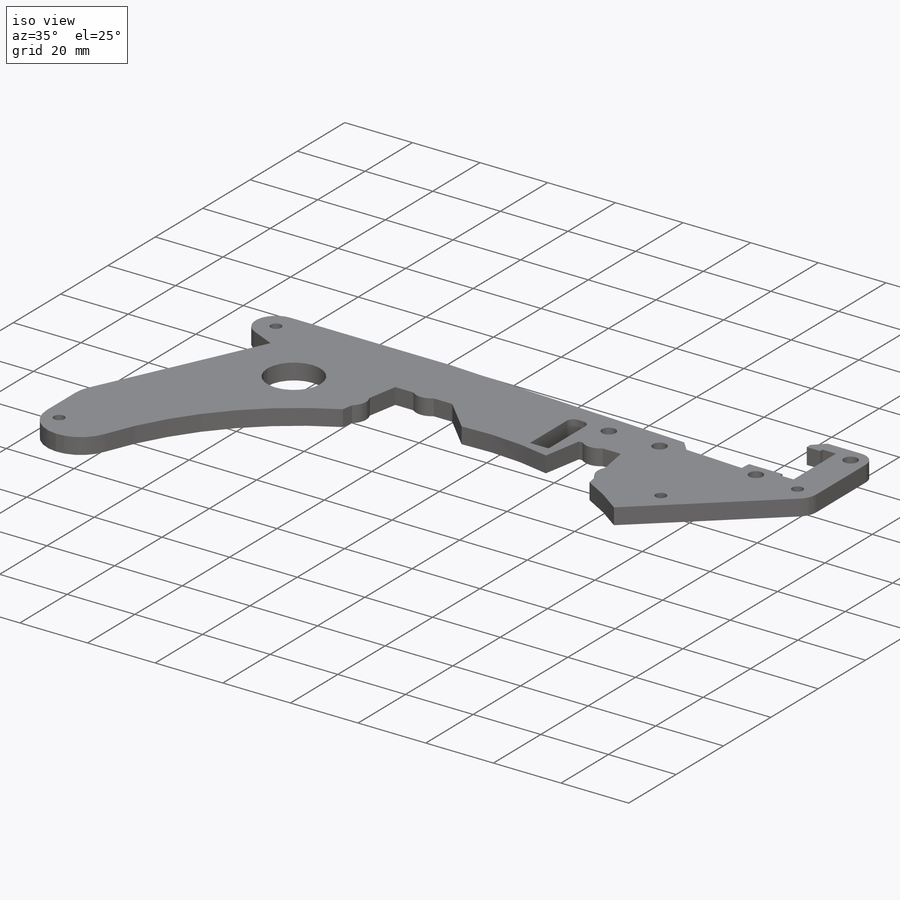
[diagram: iso view]
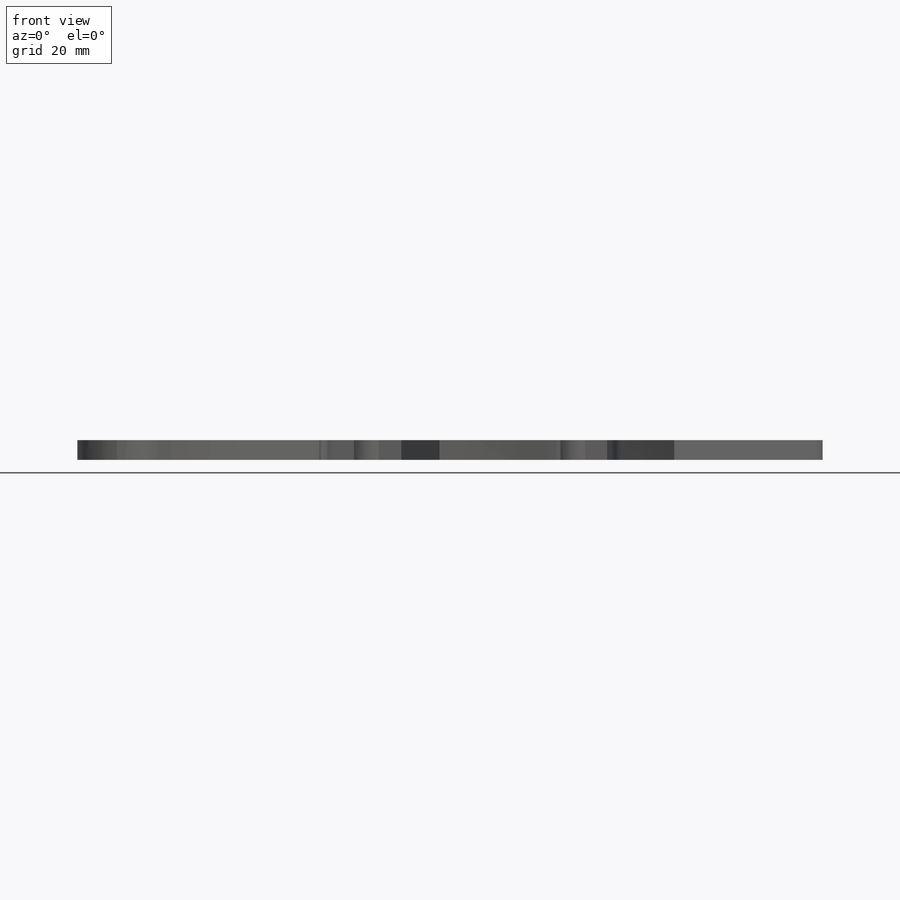
[diagram: front view]
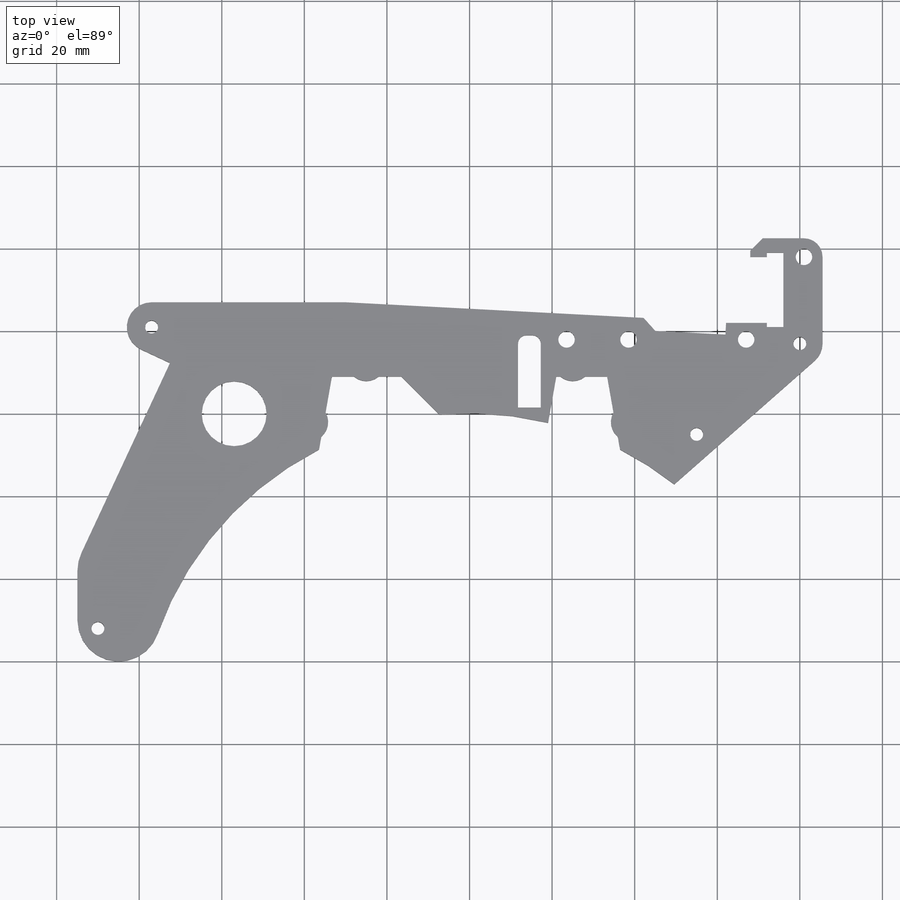
[diagram: top view]
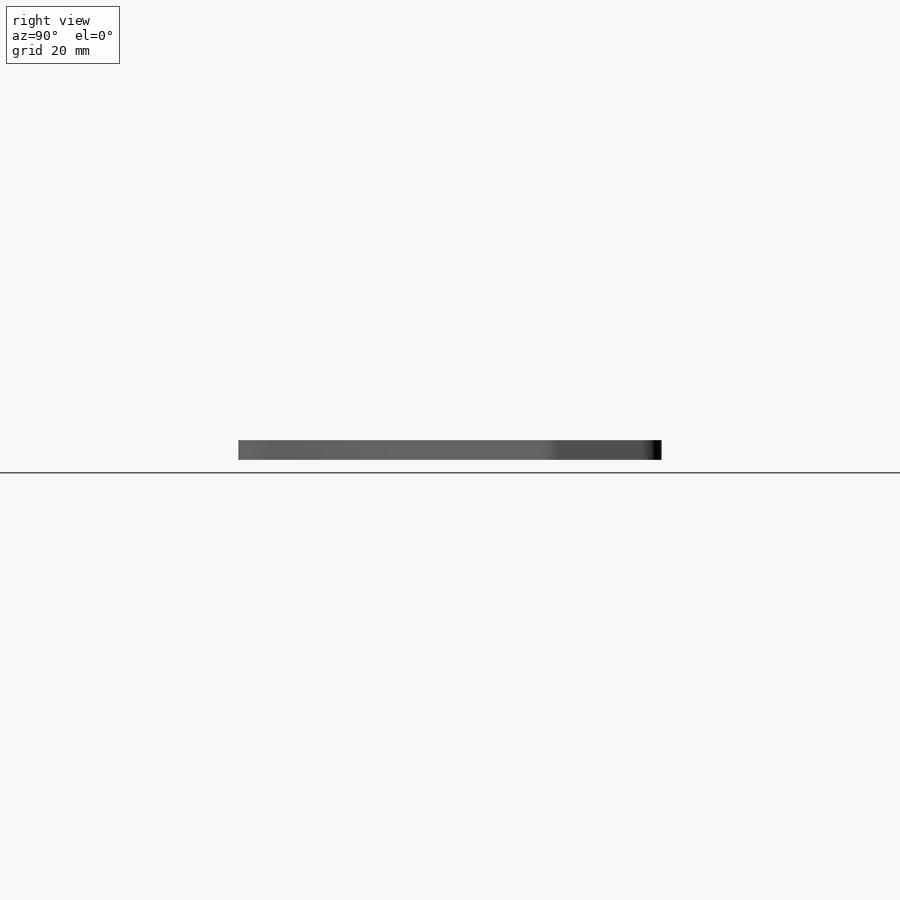
[diagram: right view]
SOLIDWORKS PART (.sldprt)
format: sldprt  version: not decoded by parser v0  size: 340,480 bytes
history: native  units: mm
features: sketch x3, extrude x2, fillet x2, material x1, cut_extrude x1, chamfer x1 (+16 scaffold rows collapsed)
feature tree (26):
  scaffold x16  (default folders/planes/origin — collapsed)
  material  "Material <not specified>"
  sketch  "Sketch1"  dims[c1.D1=160.0mm c1.D5=160.2mm c1.D16=3.125mm c1.D22=15.7mm c1.D25=10.0mm c1.D29=3.125mm c1.D37=6.0mm c1.D47=4.0mm c1.D51=4.5mm c1.D12=3.125mm c1.D2=88.0mm c1.D3=65.0mm c1.D4=~16.27227mm c2.D4=80.0deg c2.D6=1.0mm c2.D7=1.0mm c2.D8=0.1mm c2.D9=6.0mm c2.D10=50.0mm c2.D11=11.0mm c2.D12=45.0mm c2.D13=75.0mm c2.D14=97.0mm c2.D15=80.0mm c2.D17=122.5mm c2.D18=67.0mm c2.D19=110.0mm c2.D20=57.0mm c2.D21=80.0mm c2.D23=5.3391mm c3.D23=135.0deg c3.D24=72.5mm c3.D26=30.0mm c3.D27=12.0mm c3.D28=~82.555617mm c4.D28=65.0deg c4.D29=90.0mm c4.D30=28.0mm c5.D28=~70.366622mm c6.D28=65.0deg c6.D31=~5.934696mm c7.D31=3.0deg c7.D32=107.0mm c7.D33=30.0mm c7.D34=3.0mm c7.D35=22.0mm c7.D36=~14.953453mm c8.D36=45.0deg c8.D38=77.0mm c8.D39=17.0mm c8.D40=~6.781804mm c8.D41=8.0mm c9.D40=8.0mm c9.D42=5.0mm c9.D43=1.0mm c9.D44=4.0mm c9.D45=4.0mm c9.D46=85.5mm c9.D48=14.0mm c9.D49=12.0mm c9.D50=8.0mm c9.D52=14.0mm c10.D52=45.0deg c10.D51=55.0mm c11.D52=75.0mm]
  extrude  "Boss-Extrude1"  Depth=4.7625mm
  sketch  "Sketch2"  dims[c1.D1=~3.800382mm c2.D1=80.0deg c2.D2=21.0mm]
  extrude  "Boss-Extrude2"  [1 undecoded]
  sketch  "Sketch4"  dims[D1=4.25mm D2=15.0mm D3=98.0mm D4=23.5mm D5=5.5mm D6=9.0mm D7=16.5mm D8=1.0mm]
  cut_extrude  "Cut-Extrude1"  [1 undecoded]
  chamfer  "Chamfer1"  Distance=3mm Angle=45deg
  fillet  "Fillet1"  Radius=4.5mm
  fillet  "Fillet2"  Radius=2mm
decode coverage: 7 of 9 modeling features carry decoded parameters
note: ~ marks probable driven/reference dimensions
note: 2 parameter values undecoded
note: suppression state not decoded; provenance and decode notes live in map.json
